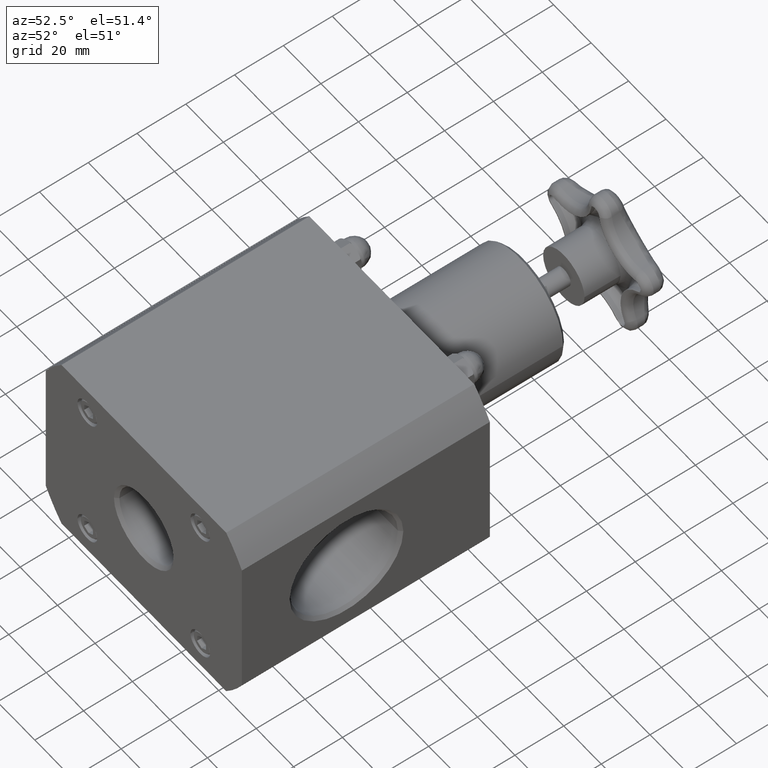
[diagram: clean part render]
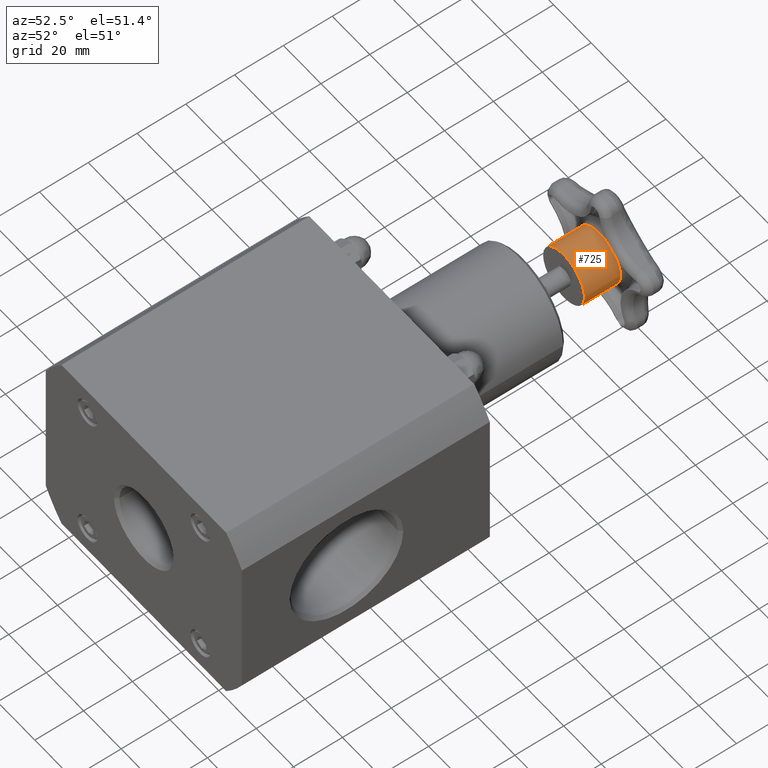
[diagram: same view with one face highlighted and labeled with its STEP entity id]
A machine part, auxiliary view. The second image highlights one B-rep face of the part: STEP entity #725.
In plain terms, the highlighted cylindrical surface (bore or boss wall) has radius 11.049 mm, axis along (0, -1, -0).
Its self-contained STEP definition (entity closure, byte-faithful):
#200=CARTESIAN_POINT('',(0.434999999999995,6.775500000000000,-4.228317E-016));
#201=VERTEX_POINT('',#200);
#202=CARTESIAN_POINT('',(-5.483311E-015,6.775500000000000,-4.228317E-016));
#203=DIRECTION('',(0.0,-1.0,0.0));
#204=DIRECTION('',(1.0,0.0,0.0));
#205=AXIS2_PLACEMENT_3D('',#202,#203,#204);
#206=CIRCLE('',#205,0.435000000000000);
#207=EDGE_CURVE('',#201,#201,#206,.T.);
#410=CARTESIAN_POINT('',(0.434999999999994,7.355500000000001,-7.938268E-016));
#411=VERTEX_POINT('',#410);
#412=CARTESIAN_POINT('',(-5.960841E-015,7.355499999999999,-4.228317E-016));
#413=DIRECTION('',(0.0,1.0,0.0));
#414=DIRECTION('',(-1.0,0.0,0.0));
#415=AXIS2_PLACEMENT_3D('',#412,#413,#414);
#416=CIRCLE('',#415,0.435000000000000);
#417=EDGE_CURVE('',#411,#411,#416,.T.);
#714=CARTESIAN_POINT('',(-5.689143E-015,7.025500000000001,-4.228317E-016));
#715=DIRECTION('',(8.233276E-016,-1.0,-9.435679E-032));
#716=DIRECTION('',(1.0,0.0,0.0));
#717=AXIS2_PLACEMENT_3D('',#714,#715,#716);
#718=CYLINDRICAL_SURFACE('',#717,0.435000000000000);
#719=ORIENTED_EDGE('',*,*,#207,.F.);
#720=EDGE_LOOP('',(#719));
#721=FACE_OUTER_BOUND('',#720,.T.);
#722=ORIENTED_EDGE('',*,*,#417,.F.);
#723=EDGE_LOOP('',(#722));
#724=FACE_BOUND('',#723,.T.);
#725=ADVANCED_FACE('',(#721,#724),#718,.T.);